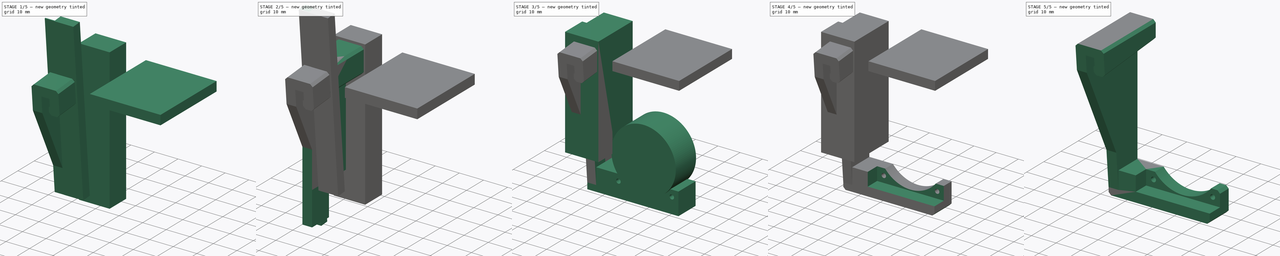
[diagram: build sequence overview — one tinted view per stage of 5, left to right]
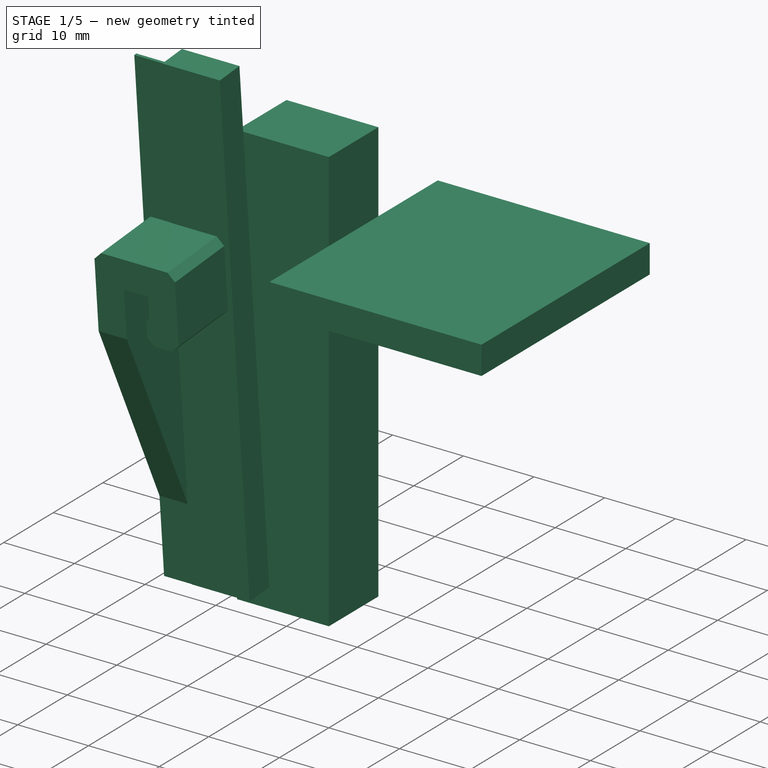
[diagram: stage 1 of 5 — iso view after this stage's code; geometry added in this stage tinted green]
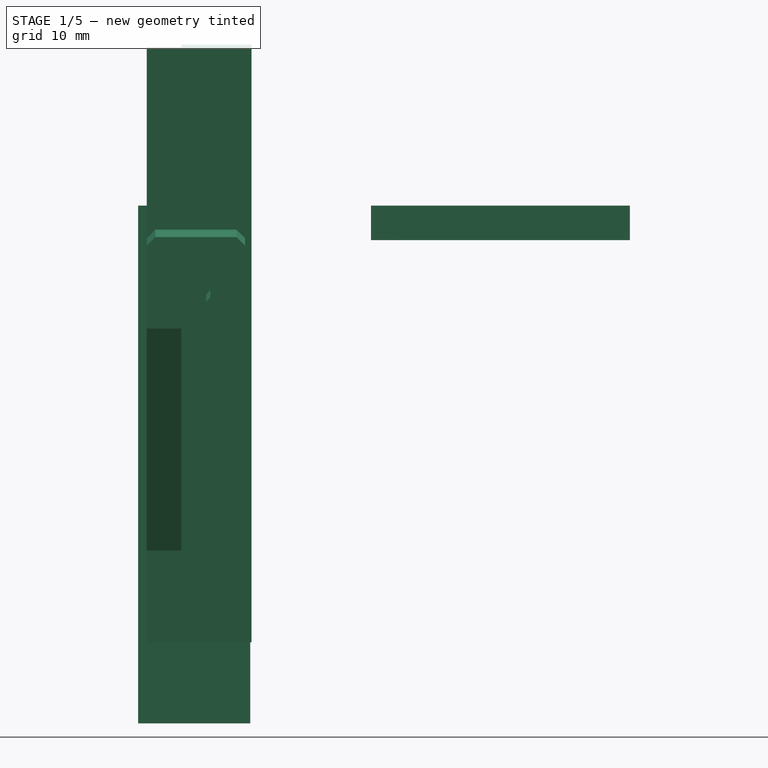
[diagram: stage 1 of 5 — front view after this stage's code; geometry added in this stage tinted green]
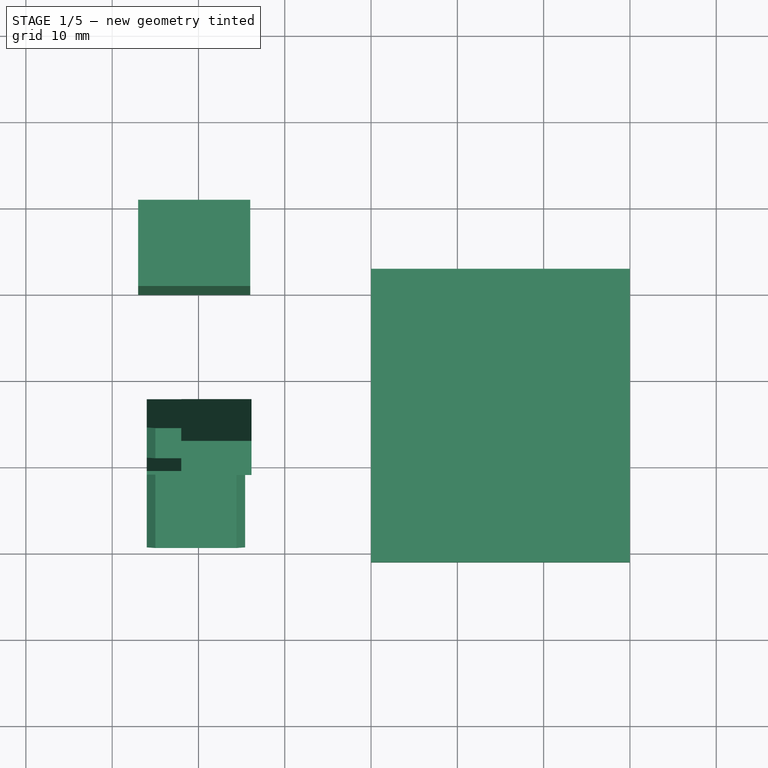
[diagram: stage 1 of 5 — top view after this stage's code; geometry added in this stage tinted green]
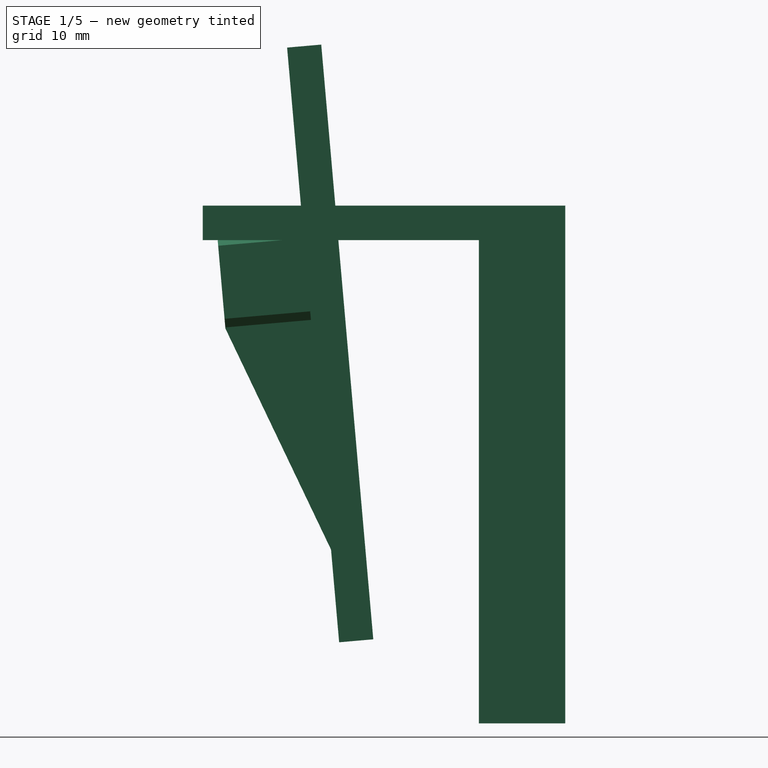
[diagram: stage 1 of 5 — right view after this stage's code; geometry added in this stage tinted green]
FCSTD DOCUMENT  (FreeCAD 0.16R6662 (Git))
Label: Y-Motor-Cooler
License: CreativeCommons Attribution-ShareAlike
LicenseURL: http://creativecommons.org/licenses/by-sa/4.0/
objects: Part::Feature×10, Part::Extrusion×10, Part::Chamfer×8, Part::Cut×7, Part::MultiFuse×6, Part::Box×4, Sketcher::SketchObject×3, PartDesign::Pad×2, Part::Cylinder×1, PartDesign::Pocket×1
note: 55 computed .brp shape members not serialized (recipe doc carries the construction recipe); baked Part::Feature solids carry a one-line shape summary decoded from their .brp

FEATURE [Part::Feature] Face005
  shape: bbox 4e-07 x 9.527 x 69.22 mm, 1 faces, 0 solids (baked)
FEATURE [Part::Extrusion] Extrusion005
  Base = -> Face005
  Dir = (8.14,0,0)
  Solid = true
FEATURE [Part::Feature] Face006
  shape: bbox 8.14 x 6.03 x 68.92 mm, 1 faces, 0 solids (baked)
FEATURE [Part::Extrusion] Extrusion006
  Base = -> Face006
  Dir = (0,-0.45874,-0.0401397)
  Solid = true
FEATURE [Part::Feature] Face007
  shape: bbox 4 x 6.03 x 68.92 mm, 1 faces, 0 solids (baked)
FEATURE [Part::Extrusion] Extrusion007
  Base = -> Face007
  Dir = (0,-0.411571,-0.0360124)
  Solid = true
FEATURE [Part::Box] Box003  label="Cube003"
  Height = 60
  Length = 13
  Placement = pos=(-27,0,0) rot=(0,0,1;0rad)
  Width = 10
FEATURE [Part::Feature] Face008
  shape: bbox 7.4 x 0.9153 x 10.46 mm, 1 faces, 0 solids (baked)
FEATURE [Part::Extrusion] Extrusion008
  Base = -> Face008
  Dir = (0,-13.8778,-1.21431)
  Solid = true
FEATURE [Part::Feature] Face009
  shape: bbox 4 x 4.184 x 47.82 mm, 1 faces, 0 solids (baked)
FEATURE [Part::Extrusion] Extrusion009
  Base = -> Face009
  Dir = (0,-13.8778,-1.21431)
  Solid = true
FEATURE [Sketcher::SketchObject] Sketch001
  Placement = pos=(-22,0,0) rot=(0.57735,0.57735,0.57735;2.0944rad)
  Support = -> Extrusion009 [Face2]
  sketch-geometry (3):
    g0: LineSegment StartX=-12.1534 StartY=9.71075 StartZ=0 EndX=-30 EndY=47.0638 EndZ=0
    g1: LineSegment StartX=-30 StartY=47.0638 StartZ=0 EndX=-30 EndY=0 EndZ=0
    g2: LineSegment StartX=-30 StartY=0 StartZ=0 EndX=-12.1534 EndY=9.71075 EndZ=0
  constraints (5):
    c: Coincident(g0,g1)
    c: PointOnObject(g1,g-1)
    c: Vertical(g1)
    c: Coincident(g1,g2)
    c: Coincident(g2,g0)
FEATURE [PartDesign::Pocket] Pocket
  Length = 5
  Sketch = -> Sketch001
  Type = 0
FEATURE [Sketcher::SketchObject] Sketch002
  Placement = pos=(0,0,0) rot=(0.57735,0.57735,0.57735;2.0944rad)
  sketch-geometry (4):
    g0: LineSegment StartX=2 StartY=56 StartZ=0 EndX=-32 EndY=56 EndZ=0
    g1: LineSegment StartX=-32 StartY=56 StartZ=0 EndX=-32 EndY=60 EndZ=0
    g2: LineSegment StartX=-32 StartY=60 StartZ=0 EndX=2 EndY=60 EndZ=0
    g3: LineSegment StartX=2 StartY=60 StartZ=0 EndX=2 EndY=56 EndZ=0
  constraints (8):
    c: Coincident(g0,g1)
    c: Coincident(g1,g2)
    c: Coincident(g2,g3)
    c: Coincident(g3,g0)
    c: Horizontal(g0)
    c: Horizontal(g2)
    c: Vertical(g1)
    c: Vertical(g3)
FEATURE [PartDesign::Pad] Pad001
  Length = 30
  Length2 = 100
  Placement = pos=(0,0,0) rot=(0.57735,0.57735,0.57735;2.0944rad)
  Sketch = -> Sketch002
  Type = 0
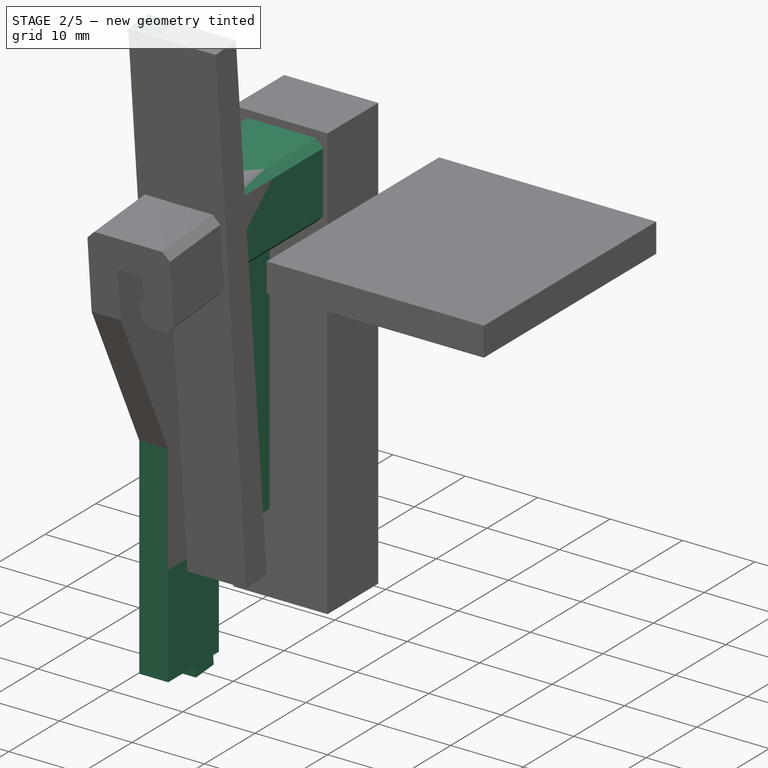
[diagram: stage 2 of 5 — iso view after this stage's code; geometry added in this stage tinted green]
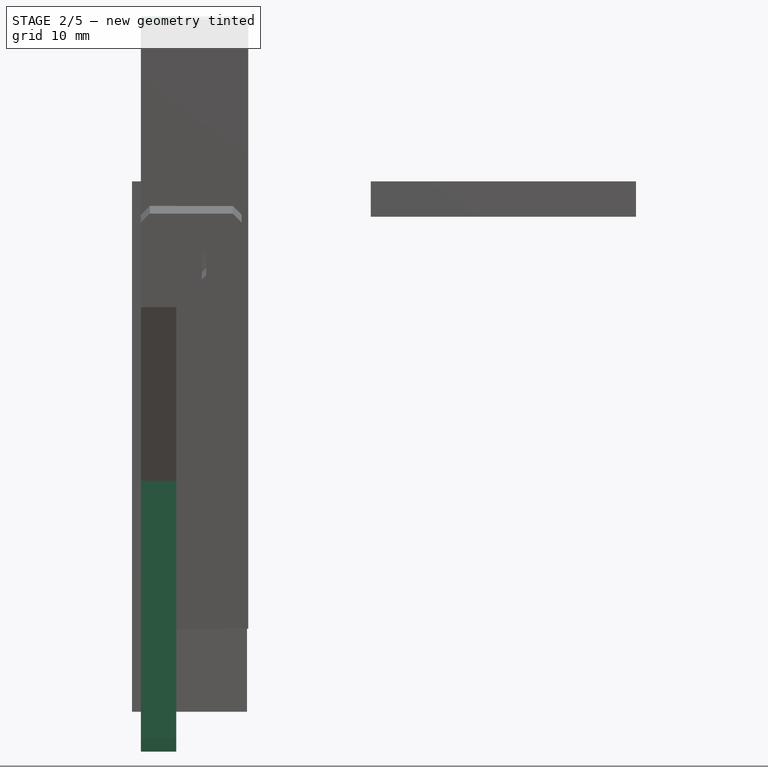
[diagram: stage 2 of 5 — front view after this stage's code; geometry added in this stage tinted green]
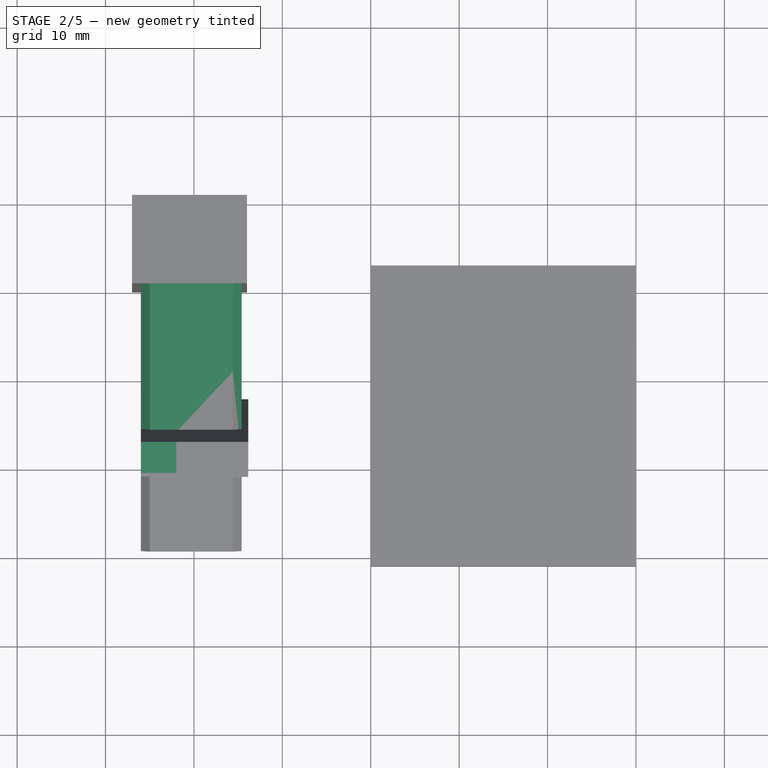
[diagram: stage 2 of 5 — top view after this stage's code; geometry added in this stage tinted green]
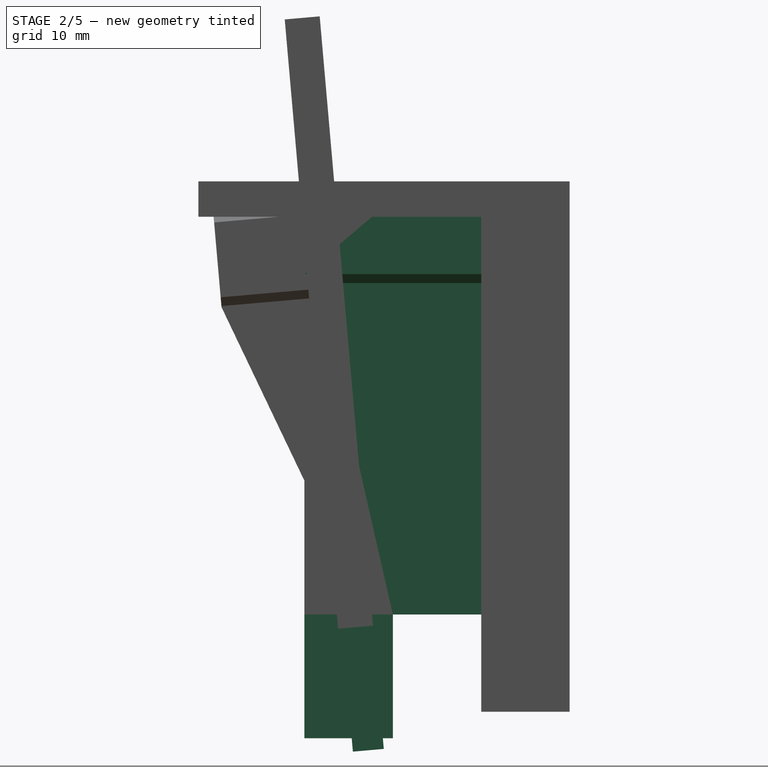
[diagram: stage 2 of 5 — right view after this stage's code; geometry added in this stage tinted green]
FEATURE [Part::Feature] Face
  shape: bbox 11.4 x 2e-07 x 48 mm, 1 faces, 0 solids (baked)
FEATURE [Part::Extrusion] Extrusion
  Base = -> Face
  Dir = (0,-10,0)
  Solid = true
FEATURE [Part::Feature] Face001
  shape: bbox 11.4 x 2e-07 x 48 mm, 1 faces, 0 solids (baked)
FEATURE [Part::Extrusion] Extrusion001
  Base = -> Face001
  Dir = (0,10,0)
  Solid = true
FEATURE [Part::MultiFuse] Fusion
  Shapes = -> [Extrusion001,Extrusion]
FEATURE [Part::Feature] Face002
  shape: bbox 4 x 10 x 4e-07 mm, 1 faces, 0 solids (baked)
FEATURE [Part::Extrusion] Extrusion002
  Base = -> Face002
  Dir = (0,0,-14)
  Solid = true
FEATURE [Part::Feature] Face003
  Placement = pos=(0,5.14285,0.224571) rot=(1,0,0;0.087278rad)
  shape: bbox 4 x 1.22 x 13.95 mm, 1 faces, 0 solids (baked)
FEATURE [Part::Extrusion] Extrusion003
  Base = -> Face003
  Dir = (0,3.49664,0.305956)
  Solid = true
FEATURE [Part::Feature] Face004
  shape: bbox 4 x 3.497 x 0.306 mm, 1 faces, 0 solids (baked)
FEATURE [Part::Extrusion] Extrusion004
  Base = -> Face004
  Dir = (0,-6.03028,68.9175)
  Solid = true
FEATURE [Part::MultiFuse] Fusion002
  Shapes = -> [Extrusion004,Extrusion003]
FEATURE [Part::MultiFuse] Fusion003
  Shapes = -> [Extrusion007,Extrusion006,Extrusion005,Fusion002]
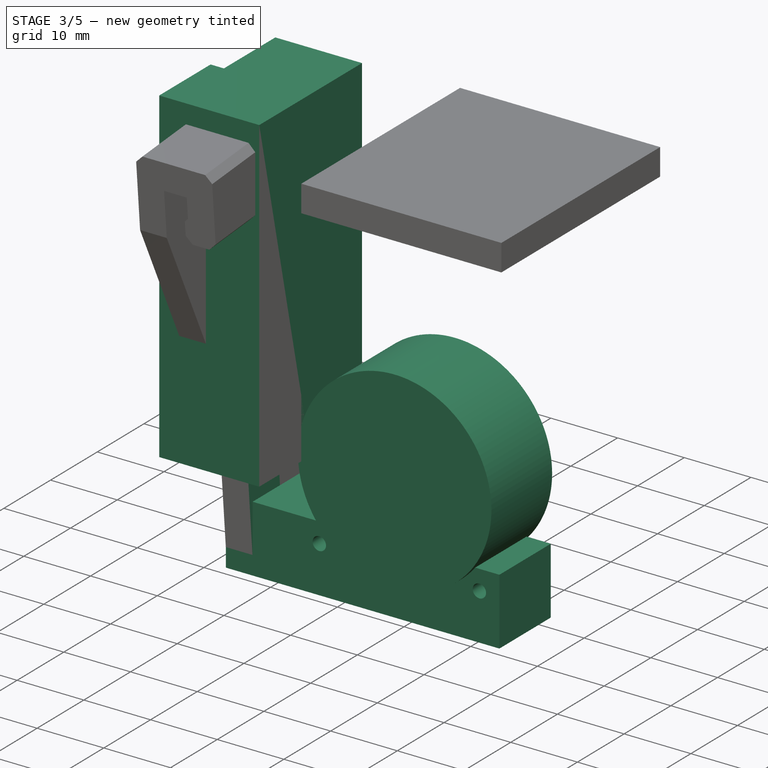
[diagram: stage 3 of 5 — iso view after this stage's code; geometry added in this stage tinted green]
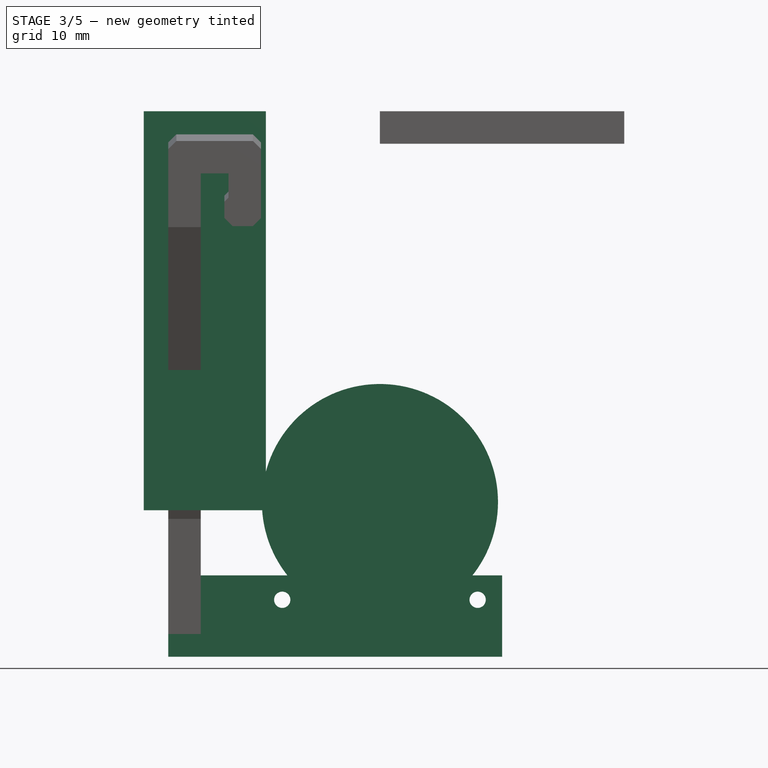
[diagram: stage 3 of 5 — front view after this stage's code; geometry added in this stage tinted green]
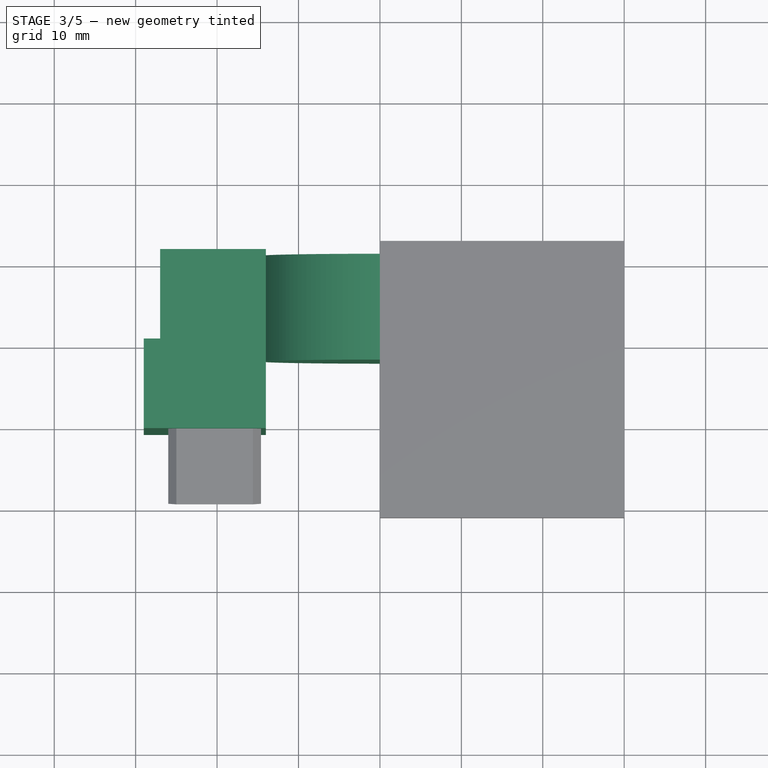
[diagram: stage 3 of 5 — top view after this stage's code; geometry added in this stage tinted green]
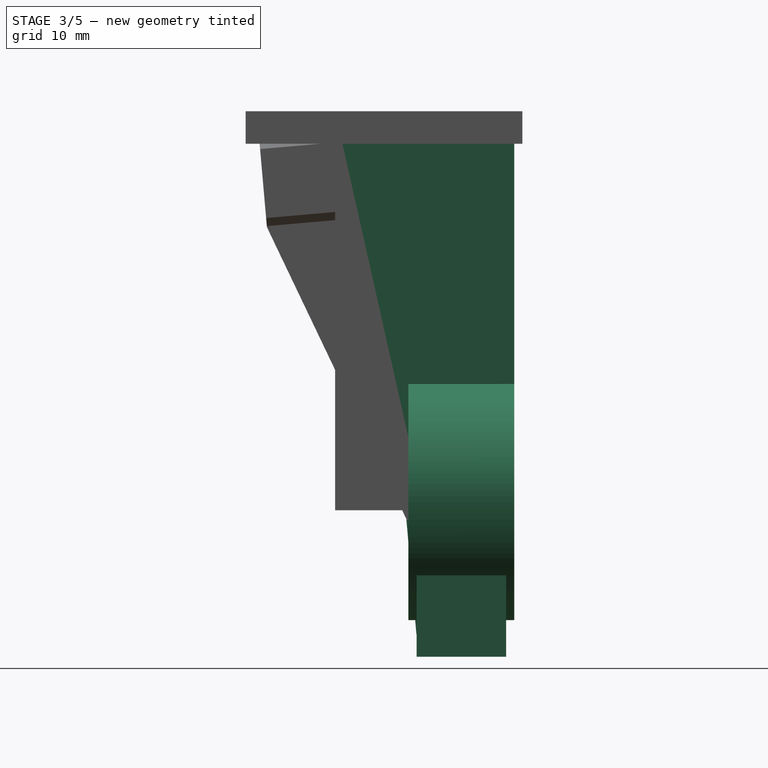
[diagram: stage 3 of 5 — right view after this stage's code; geometry added in this stage tinted green]
FEATURE [Sketcher::SketchObject] Sketch
  Placement = pos=(0,0,0) rot=(1,0,0;1.5708rad)
  sketch-geometry (14):
    g0: Circle CenterX=-12 CenterY=0 CenterZ=0 NormalX=0 NormalY=0 NormalZ=1 Radius=1
    g1: Circle CenterX=12 CenterY=0 CenterZ=0 NormalX=0 NormalY=0 NormalZ=1 Radius=1
    g2: LineSegment StartX=15 StartY=-7 StartZ=0 EndX=15 EndY=3 EndZ=0
    g3: LineSegment StartX=15 StartY=3 StartZ=0 EndX=-22 EndY=3 EndZ=0
    g4: LineSegment StartX=-22 StartY=3 StartZ=0 EndX=-22 EndY=55 EndZ=0
    g5: LineSegment StartX=-22 StartY=55 StartZ=0 EndX=-18.6 EndY=55 EndZ=0
    g6: LineSegment StartX=-18.6 StartY=55 StartZ=0 EndX=-18.6 EndY=52 EndZ=0
    g7: LineSegment StartX=-18.6 StartY=52 StartZ=0 EndX=-19.1 EndY=51.5 EndZ=0
    g8: LineSegment StartX=-19.1 StartY=51.5 StartZ=0 EndX=-19.1 EndY=48.5 EndZ=0
    g9: LineSegment StartX=-19.1 StartY=48.5 StartZ=0 EndX=-14.6 EndY=48.5 EndZ=0
    g10: LineSegment StartX=-14.6 StartY=48.5 StartZ=0 EndX=-14.6 EndY=59 EndZ=0
    g11: LineSegment StartX=-14.6 StartY=59 StartZ=0 EndX=-26 EndY=59 EndZ=0
    g12: LineSegment StartX=-26 StartY=59 StartZ=0 EndX=-26 EndY=-7 EndZ=0
    g13: LineSegment StartX=-26 StartY=-7 StartZ=0 EndX=15 EndY=-7 EndZ=0
  constraints (42):
    c: PointOnObject(g0,g-1)
    c: PointOnObject(g1,g-1)
    c: DistanceX(g-1,g1) = 12
    c: DistanceX(g0,g-1) = 12
    c: Radius(g1) = 1
    c: Radius(g0) = 1
    c: Vertical(g2)
    c: Coincident(g2,g3)
    c: Horizontal(g3)
    c: Coincident(g3,g4)
    c: Vertical(g4)
    c: Coincident(g4,g5)
    c: Horizontal(g5)
    c: Coincident(g5,g6)
    c: Vertical(g6)
    c: Coincident(g6,g7)
    c: Coincident(g7,g8)
    c: Vertical(g8)
    c: Coincident(g8,g9)
    c: Horizontal(g9)
    c: Coincident(g9,g10)
    c: Vertical(g10)
    c: Coincident(g10,g11)
    c: Horizontal(g11)
    c: Coincident(g11,g12)
    c: Vertical(g12)
    c: Coincident(g12,g13)
    c: Coincident(g13,g2)
    c: Horizontal(g13)
    c: DistanceY(g2,g-1) = 7
    c: Distance(g1,g2) = 3
    c: DistanceY(g-1,g2) = 3
    c: Distance(g13) = 41
    c: Distance(g3,g12) = 4
    c: Distance(g4) = 52
    c: Distance(g4,g11) = 4
    c: Distance(g8,g4) = 2.9
    c: Distance(g8) = 3
    c: Distance(g6) = 3
    c: DistanceX(g7,g6) = 0.5
    c: DistanceY(g7,g6) = 0.5
    c: Distance(g5,g10) = 4
FEATURE [PartDesign::Pad] Pad
  Length = 11
  Length2 = 100
  Placement = pos=(0,0,0) rot=(1,0,0;1.5708rad)
  Sketch = -> Sketch
  Type = 0
FEATURE [Part::Cylinder] Cylinder
  Angle = 360
  Height = 13
  Placement = pos=(0,1,12) rot=(1,0,0;1.5708rad)
  Radius = 14.5
FEATURE [Part::Box] Box001  label="Cube001"
  Height = 49
  Length = 15
  Placement = pos=(-29,-21,11) rot=(0,0,1;0rad)
  Width = 11
FEATURE [Part::Box] Box002  label="Cube002"
  Height = 49
  Length = 13
  Placement = pos=(-27,-12,11) rot=(0,0,1;0rad)
  Width = 13
FEATURE [Part::MultiFuse] Fusion001
  Placement = pos=(0,5.14285,0.224571) rot=(1,0,0;0.087278rad)
  Shapes = -> [Fusion,Extrusion002]
FEATURE [Part::Cut] Cut004
  Base = -> Fusion001
  Tool = -> Fusion003
FEATURE [Part::Cut] Cut005
  Base = -> Cut004
  Tool = -> Box003
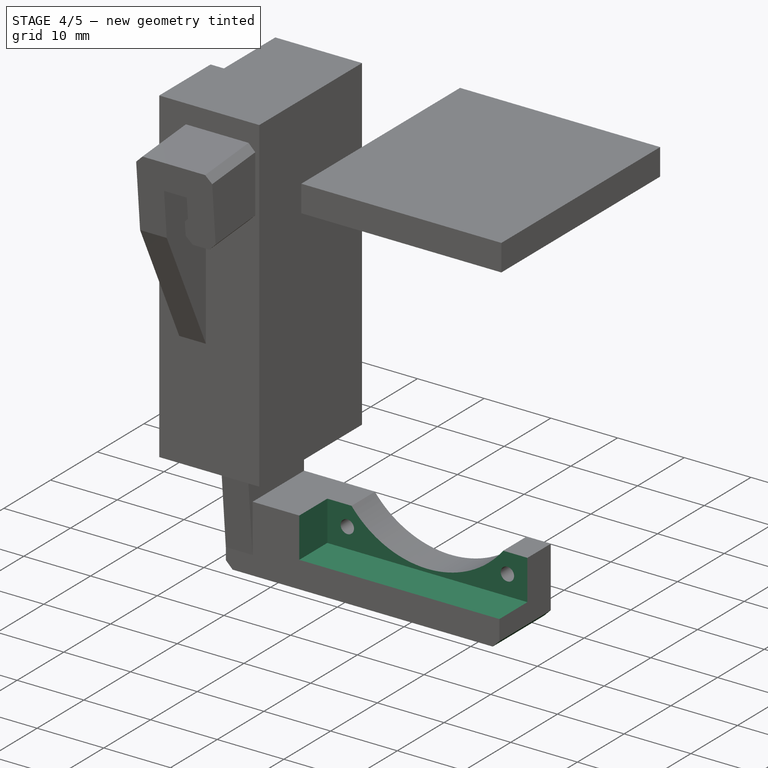
[diagram: stage 4 of 5 — iso view after this stage's code; geometry added in this stage tinted green]
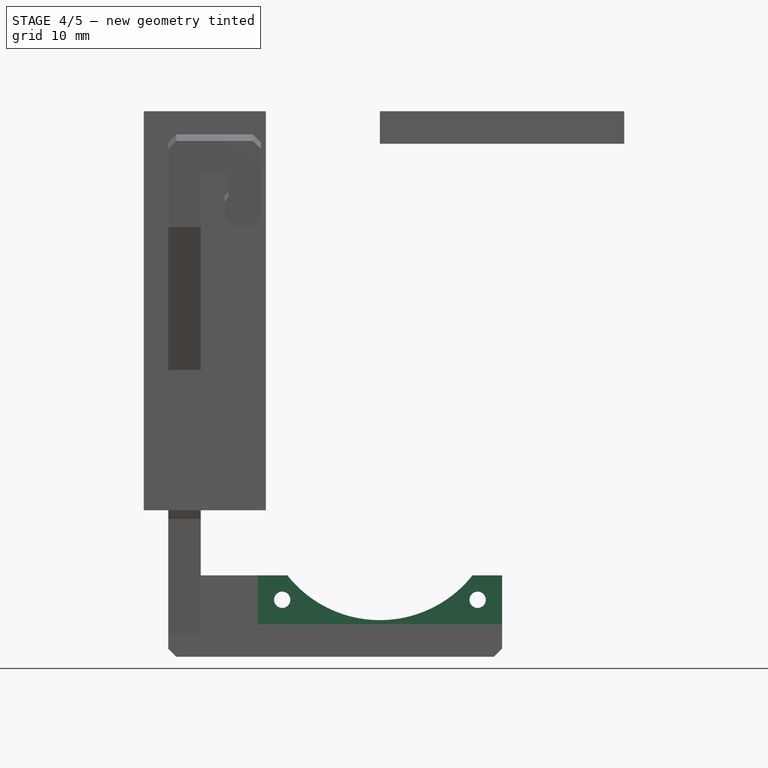
[diagram: stage 4 of 5 — front view after this stage's code; geometry added in this stage tinted green]
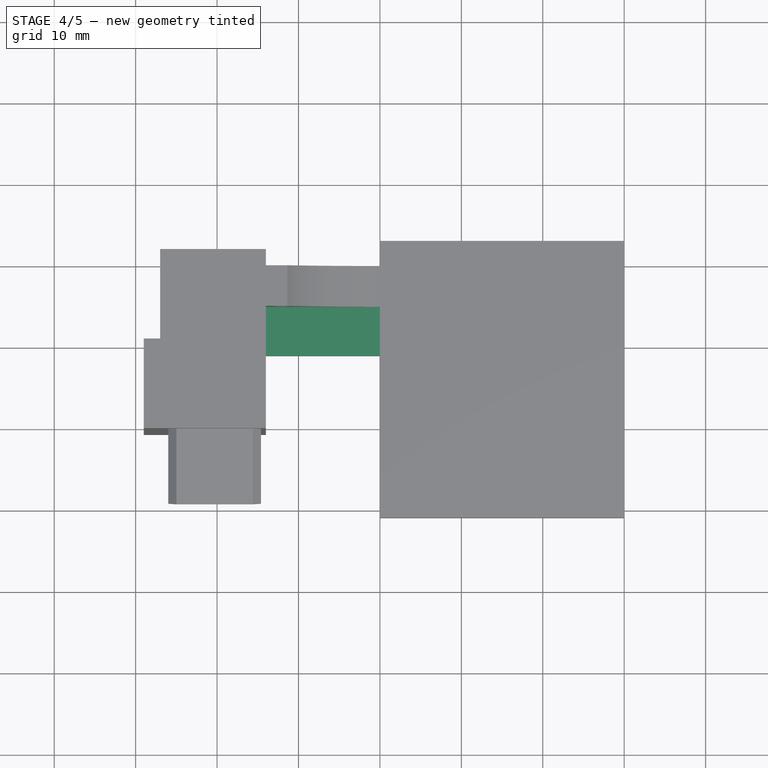
[diagram: stage 4 of 5 — top view after this stage's code; geometry added in this stage tinted green]
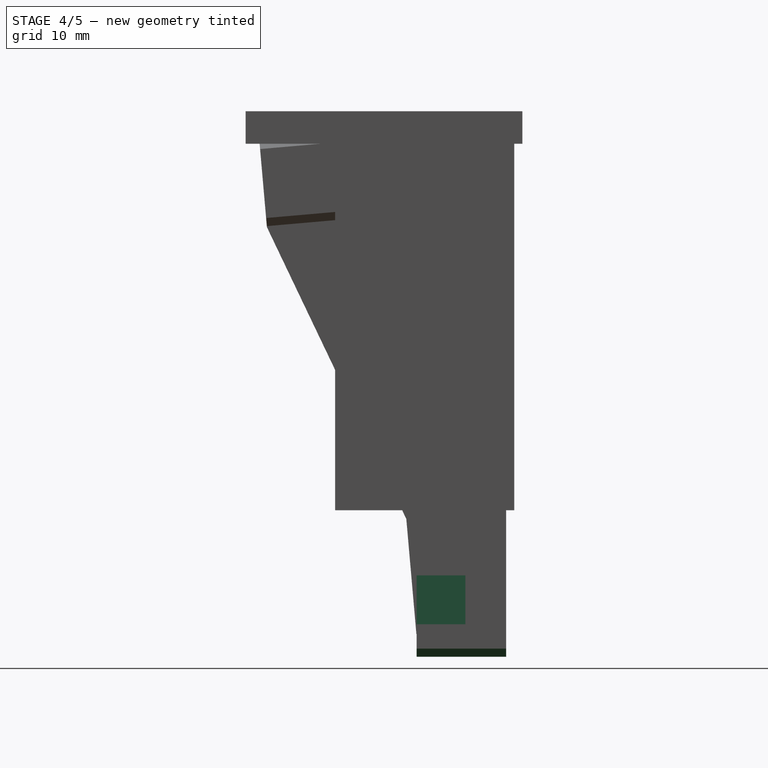
[diagram: stage 4 of 5 — right view after this stage's code; geometry added in this stage tinted green]
FEATURE [Part::Box] Box  label="Cube"
  Height = 14
  Length = 31
  Placement = pos=(-15,-23,-3) rot=(0,0,1;0rad)
  Width = 18
FEATURE [Part::Cut] Cut
  Base = -> Pad
  Tool = -> Cylinder
FEATURE [Part::Cut] Cut001
  Base = -> Cut
  Tool = -> Box
FEATURE [Part::Chamfer] Chamfer
  Base = -> Cut001
  Edges = 1 edges r=1: [Edge6]
FEATURE [Part::Chamfer] Chamfer001
  Base = -> Chamfer
  Edges = 1 edges r=1: [Edge47]
FEATURE [Part::Chamfer] Chamfer002
  Base = -> Chamfer001
  Edges = 1 edges r=1: [Edge26]
FEATURE [Part::Chamfer] Chamfer003
  Base = -> Chamfer002
  Edges = 1 edges r=1: [Edge27]
FEATURE [Part::Chamfer] Chamfer004
  Base = -> Chamfer003
  Edges = 1 edges r=1: [Edge28]
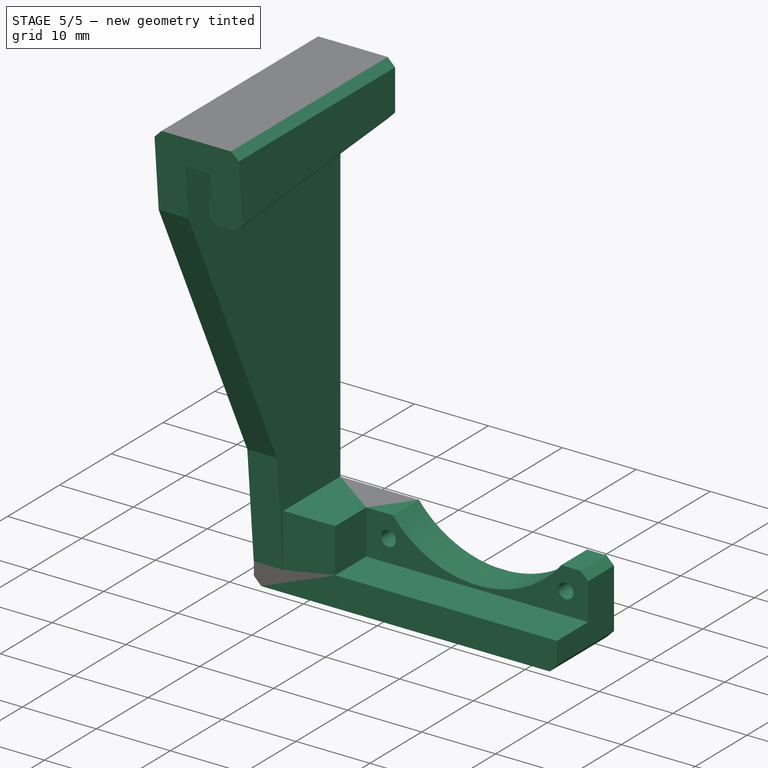
[diagram: stage 5 of 5 — iso view after this stage's code; geometry added in this stage tinted green]
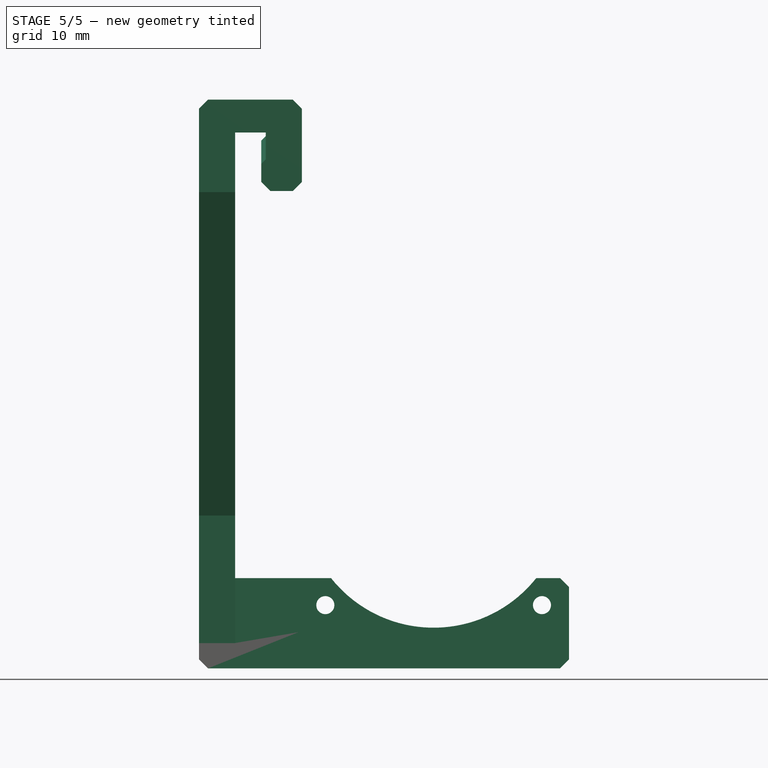
[diagram: stage 5 of 5 — front view after this stage's code; geometry added in this stage tinted green]
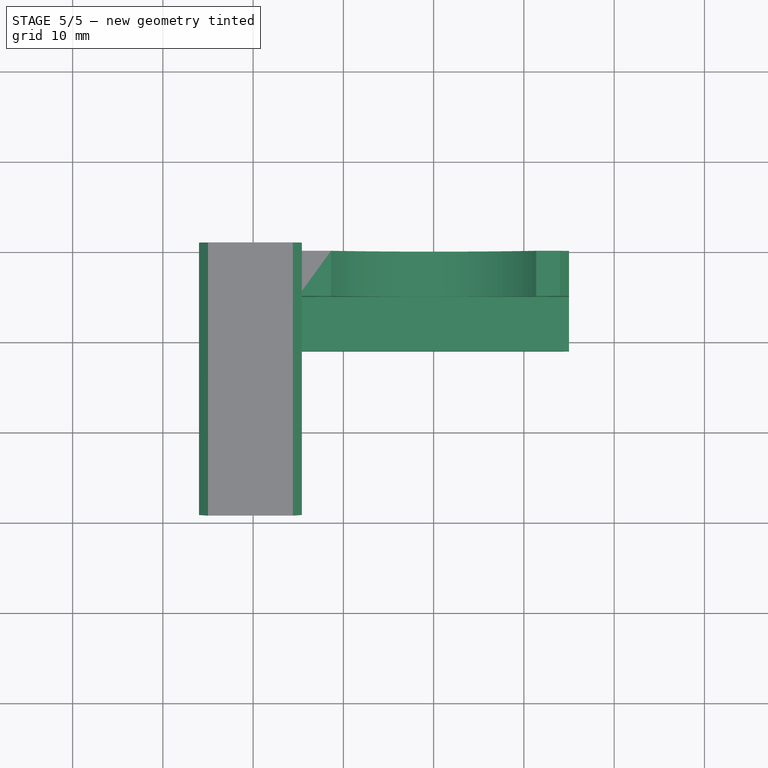
[diagram: stage 5 of 5 — top view after this stage's code; geometry added in this stage tinted green]
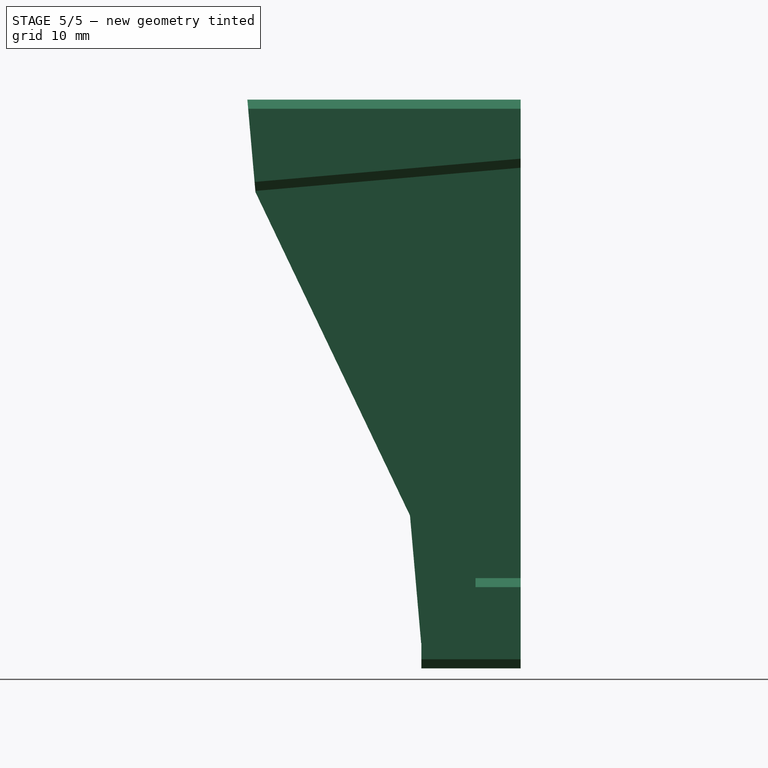
[diagram: stage 5 of 5 — right view after this stage's code; geometry added in this stage tinted green]
FEATURE [Part::Chamfer] Chamfer005
  Base = -> Chamfer004
  Edges = 1 edges r=1: [Edge29]
FEATURE [Part::Chamfer] Chamfer006
  Base = -> Chamfer005
  Edges = 1 edges r=1: [Edge61]
FEATURE [Part::Cut] Cut002
  Base = -> Chamfer006
  Tool = -> Box001
FEATURE [Part::Cut] Cut003
  Base = -> Cut002
  Tool = -> Box002
FEATURE [Part::MultiFuse] Fusion004
  Shapes = -> [Cut003,Cut005]
FEATURE [Part::MultiFuse] Fusion005
  Placement = pos=(30,0,0) rot=(0,0,1;0rad)
  Shapes = -> [Pocket,Extrusion008,Fusion004]
FEATURE [Part::Cut] Cut006
  Base = -> Fusion005
  Tool = -> Pad001
FEATURE [Part::Chamfer] Chamfer007
  Base = -> Cut006
  Edges = 2 edges r=1: [Edge30,Edge65]
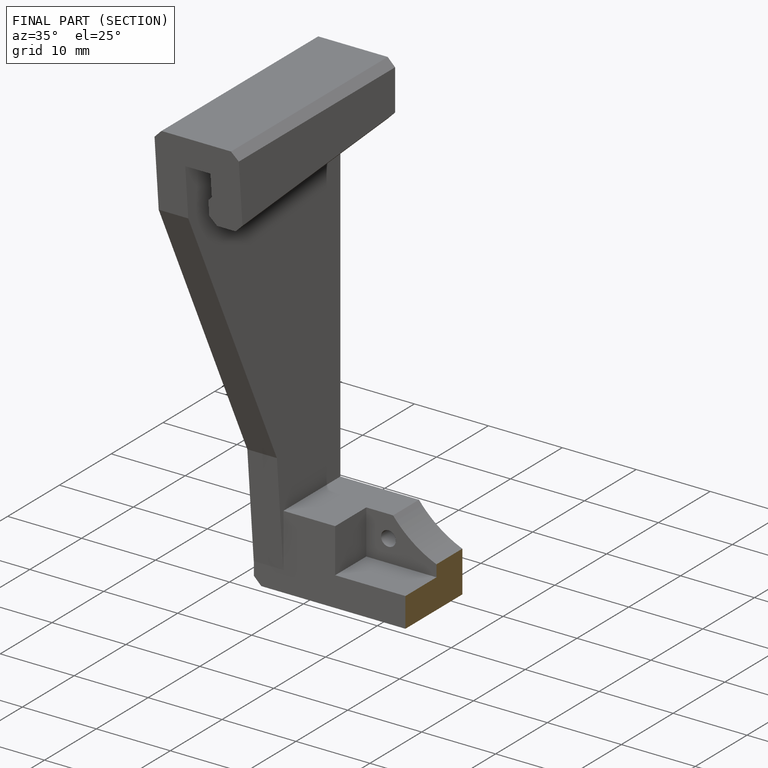
[diagram: finished part — half-section view (interior)]
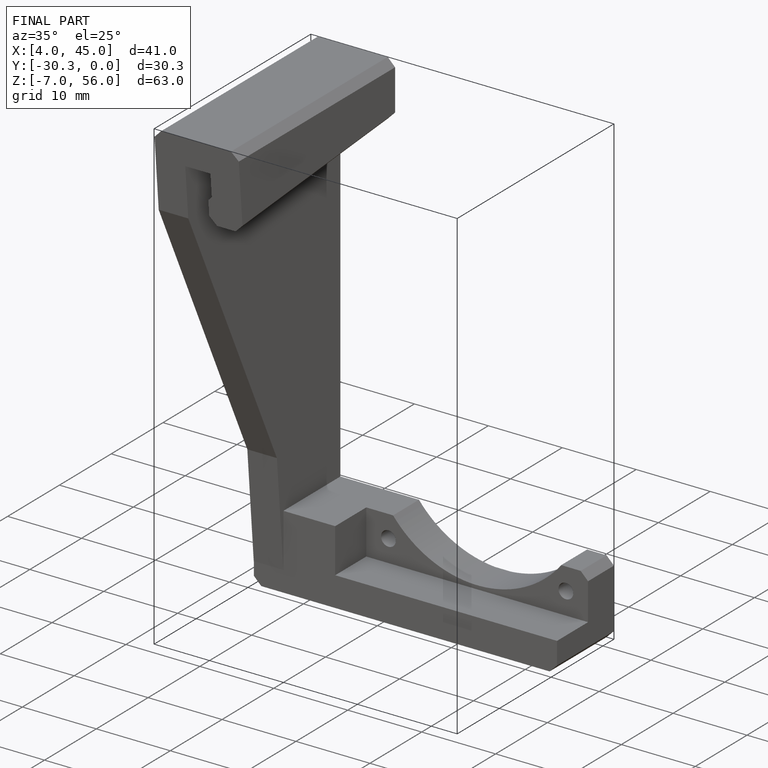
[diagram: finished part — iso view with bounding-box wireframe]
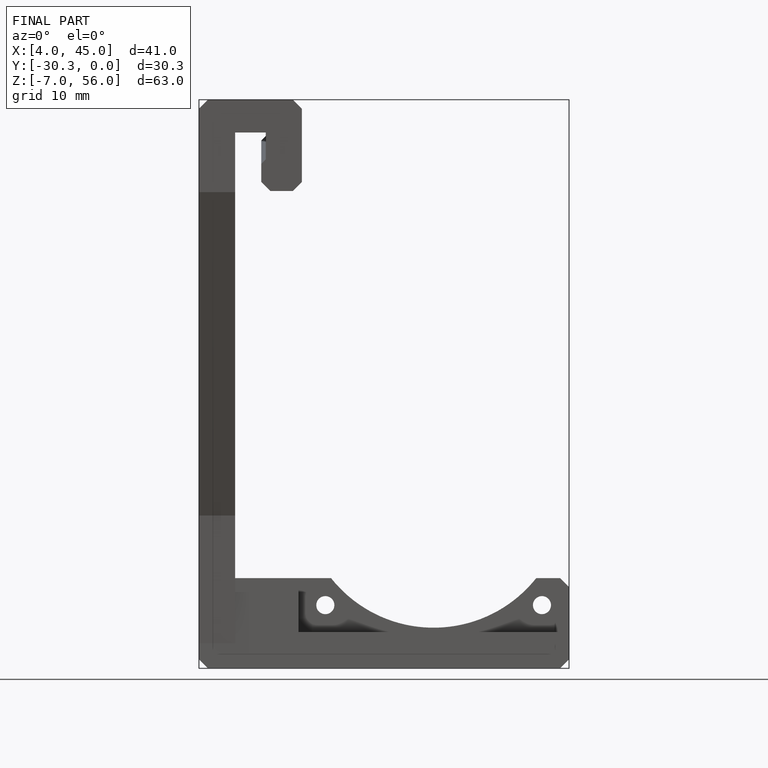
[diagram: finished part — front view with bounding-box wireframe]
